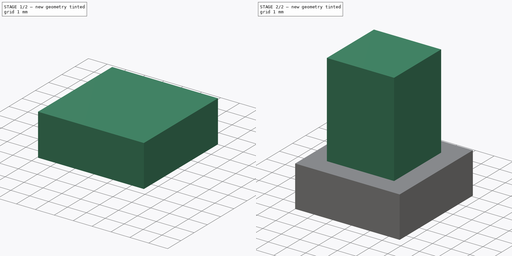
[diagram: build sequence overview — one tinted view per stage of 2, left to right]
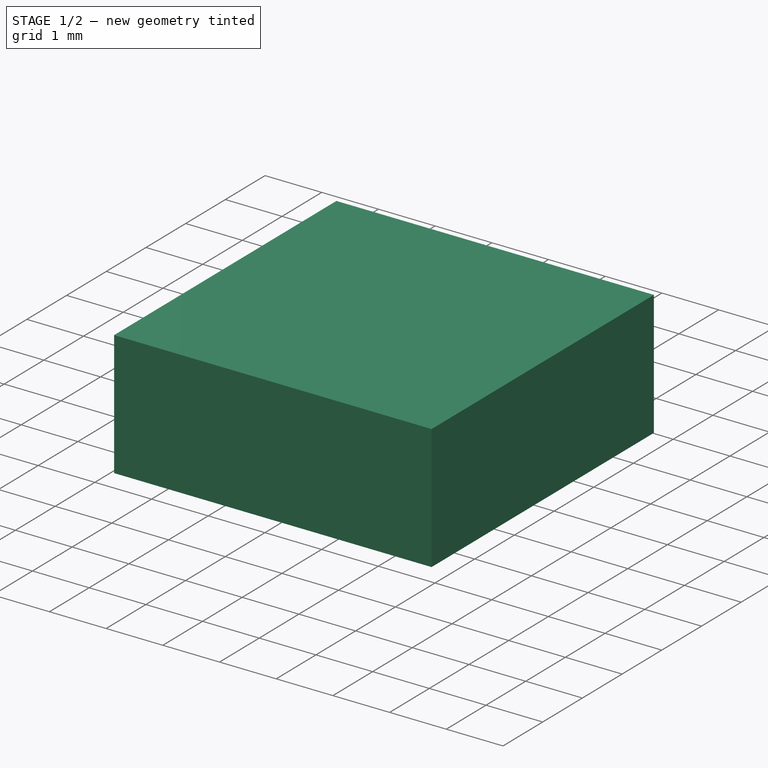
[diagram: stage 1 of 2 — iso view after this stage's code; geometry added in this stage tinted green]
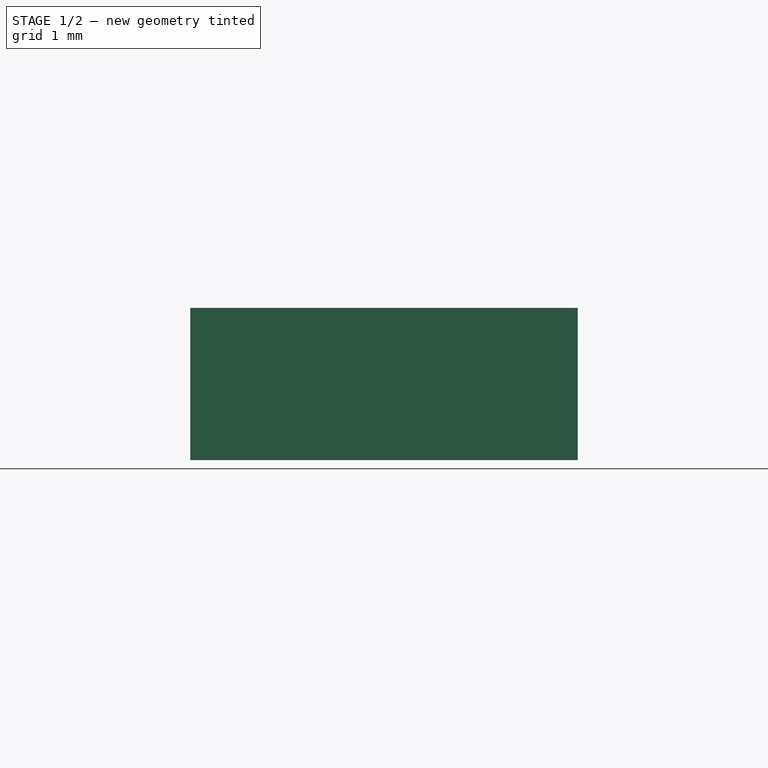
[diagram: stage 1 of 2 — front view after this stage's code; geometry added in this stage tinted green]
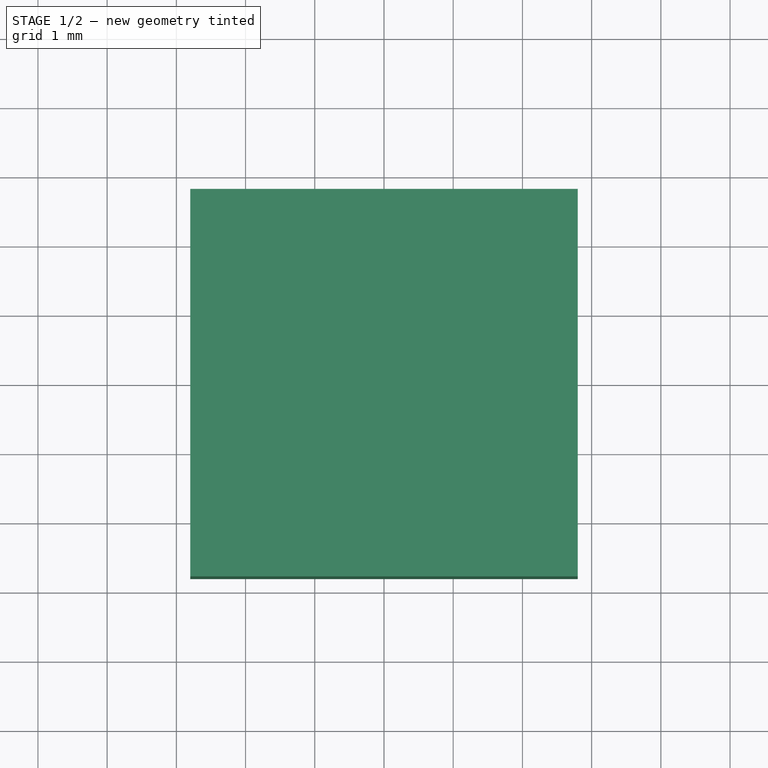
[diagram: stage 1 of 2 — top view after this stage's code; geometry added in this stage tinted green]
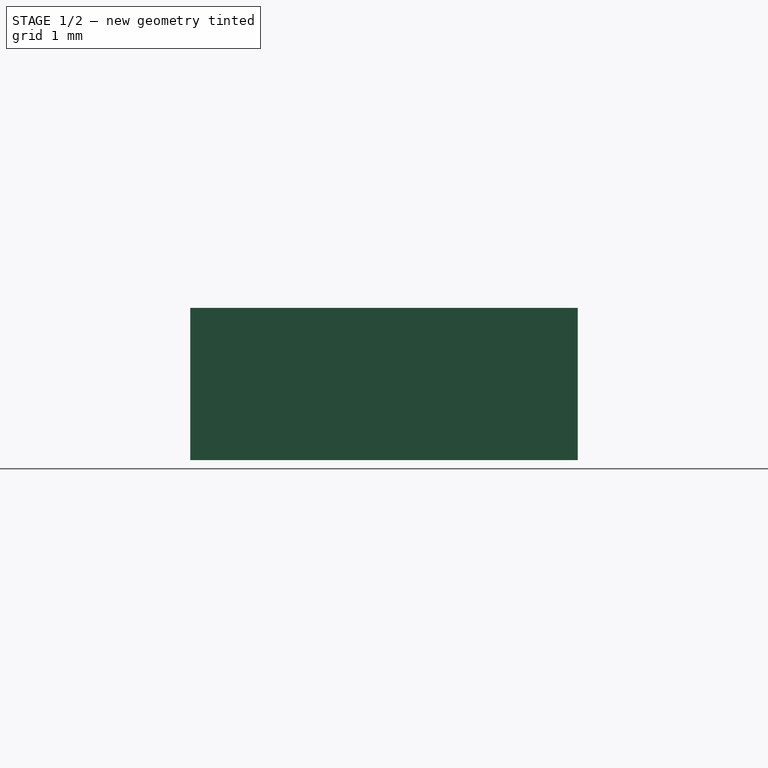
[diagram: stage 1 of 2 — right view after this stage's code; geometry added in this stage tinted green]
FCSTD DOCUMENT  (FreeCAD 0.16R6706 (Git))
Label: LegSpacer
License: All rights reserved
LicenseURL: http://en.wikipedia.org/wiki/All_rights_reserved
objects: Sketcher::SketchObject×2, PartDesign::Pad×2
note: 6 computed .brp shape members not serialized (recipe doc carries the construction recipe); baked Part::Feature solids carry a one-line shape summary decoded from their .brp

FEATURE [Sketcher::SketchObject] Sketch
  sketch-geometry (4):
    g0: LineSegment StartX=-2.8 StartY=2.8 StartZ=0 EndX=2.8 EndY=2.8 EndZ=0
    g1: LineSegment StartX=2.8 StartY=2.8 StartZ=0 EndX=2.8 EndY=-2.8 EndZ=0
    g2: LineSegment StartX=2.8 StartY=-2.8 StartZ=0 EndX=-2.8 EndY=-2.8 EndZ=0
    g3: LineSegment StartX=-2.8 StartY=-2.8 StartZ=0 EndX=-2.8 EndY=2.8 EndZ=0
  constraints (11):
    c: Coincident(g0,g1)
    c: Coincident(g1,g2)
    c: Coincident(g2,g3)
    c: Coincident(g3,g0)
    c: Horizontal(g0)
    c: Horizontal(g2)
    c: Vertical(g1)
    c: Vertical(g3)
    c: Symmetric(g2,g0,g-1)
    c: Equal(g1,g0)
    c: DistanceY(g1,g1) = 5.6
FEATURE [PartDesign::Pad] Pad
  Length = 2.2
  Length2 = 100
  Sketch = -> Sketch
  Type = 0
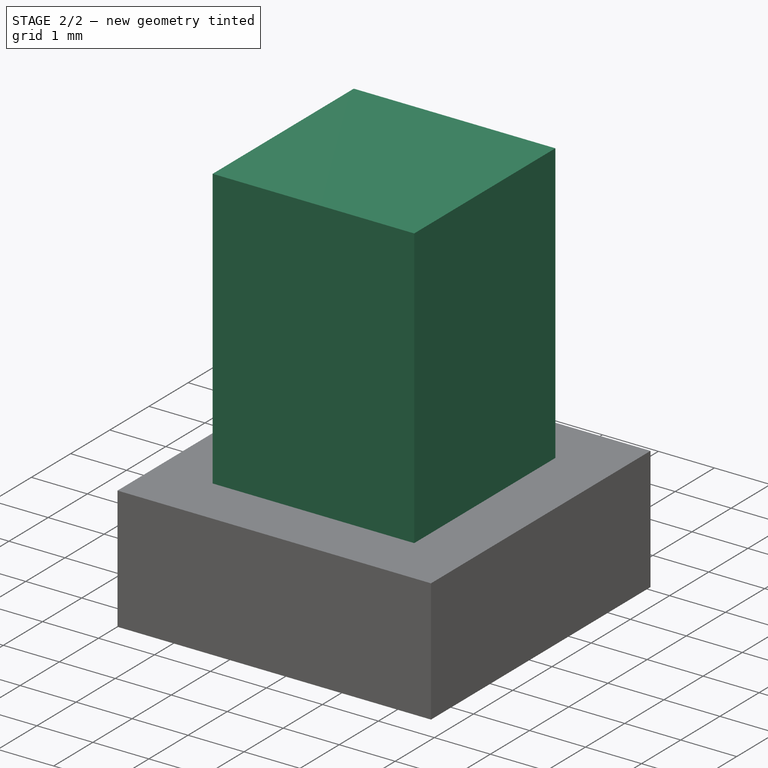
[diagram: stage 2 of 2 — iso view after this stage's code; geometry added in this stage tinted green]
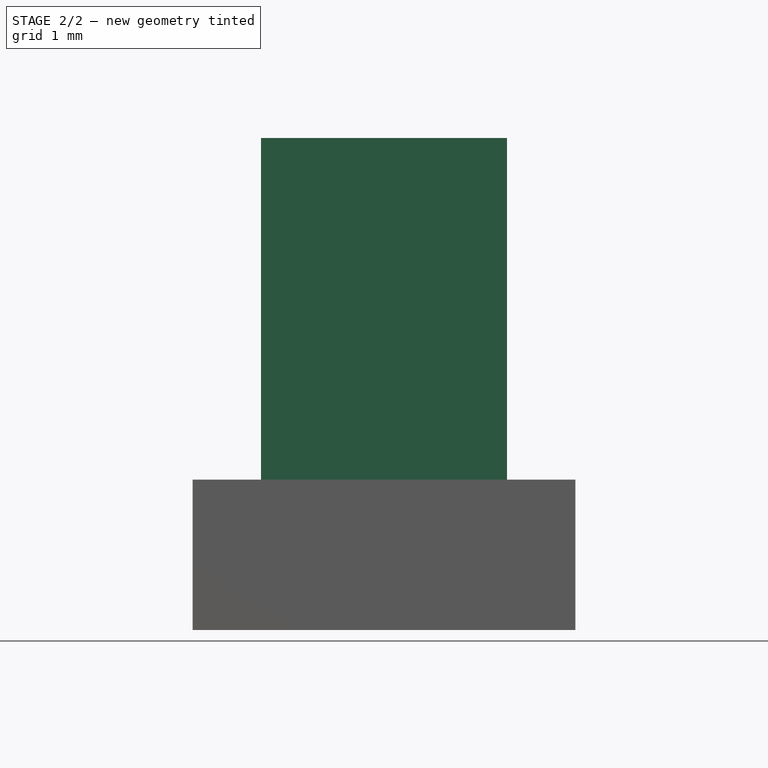
[diagram: stage 2 of 2 — front view after this stage's code; geometry added in this stage tinted green]
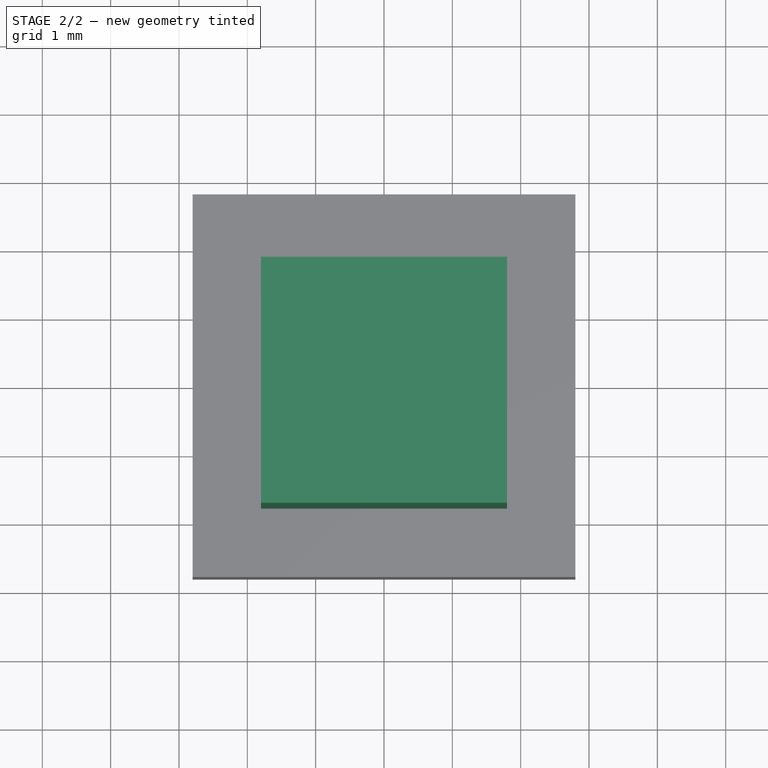
[diagram: stage 2 of 2 — top view after this stage's code; geometry added in this stage tinted green]
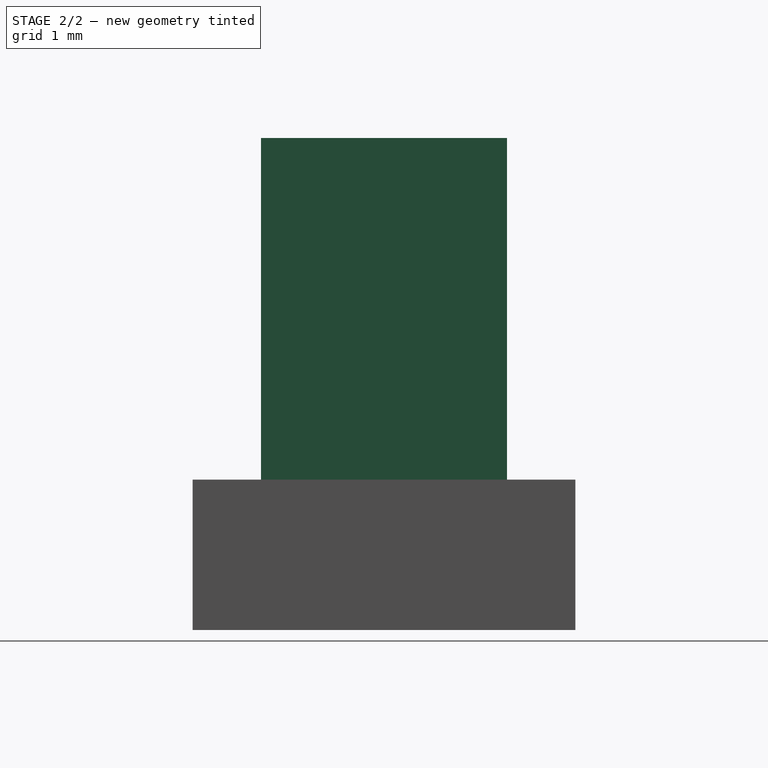
[diagram: stage 2 of 2 — right view after this stage's code; geometry added in this stage tinted green]
FEATURE [Sketcher::SketchObject] Sketch001
  Placement = pos=(0,0,2.2) rot=(0,0,1;0rad)
  Support = -> Pad [Face6]
  sketch-geometry (4):
    g0: LineSegment StartX=-1.8 StartY=1.8 StartZ=0 EndX=1.8 EndY=1.8 EndZ=0
    g1: LineSegment StartX=1.8 StartY=1.8 StartZ=0 EndX=1.8 EndY=-1.8 EndZ=0
    g2: LineSegment StartX=1.8 StartY=-1.8 StartZ=0 EndX=-1.8 EndY=-1.8 EndZ=0
    g3: LineSegment StartX=-1.8 StartY=-1.8 StartZ=0 EndX=-1.8 EndY=1.8 EndZ=0
  constraints (11):
    c: Coincident(g0,g1)
    c: Coincident(g1,g2)
    c: Coincident(g2,g3)
    c: Coincident(g3,g0)
    c: Horizontal(g0)
    c: Horizontal(g2)
    c: Vertical(g1)
    c: Vertical(g3)
    c: Symmetric(g2,g0,g-1)
    c: Equal(g1,g0)
    c: DistanceY(g1,g1) = 3.6
FEATURE [PartDesign::Pad] Pad001
  Length = 5
  Length2 = 100
  Sketch = -> Sketch001
  Type = 0
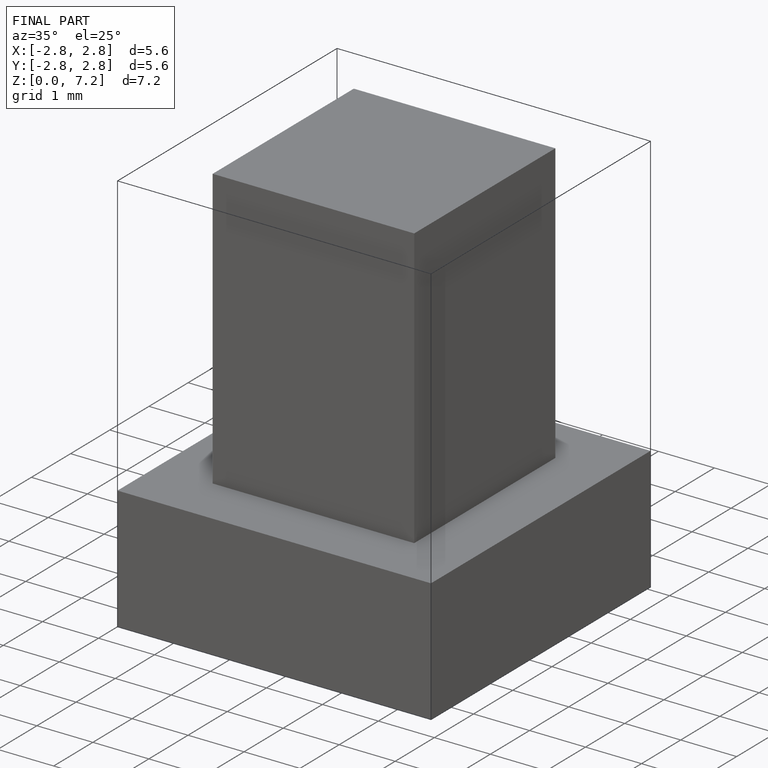
[diagram: finished part — iso view with bounding-box wireframe]
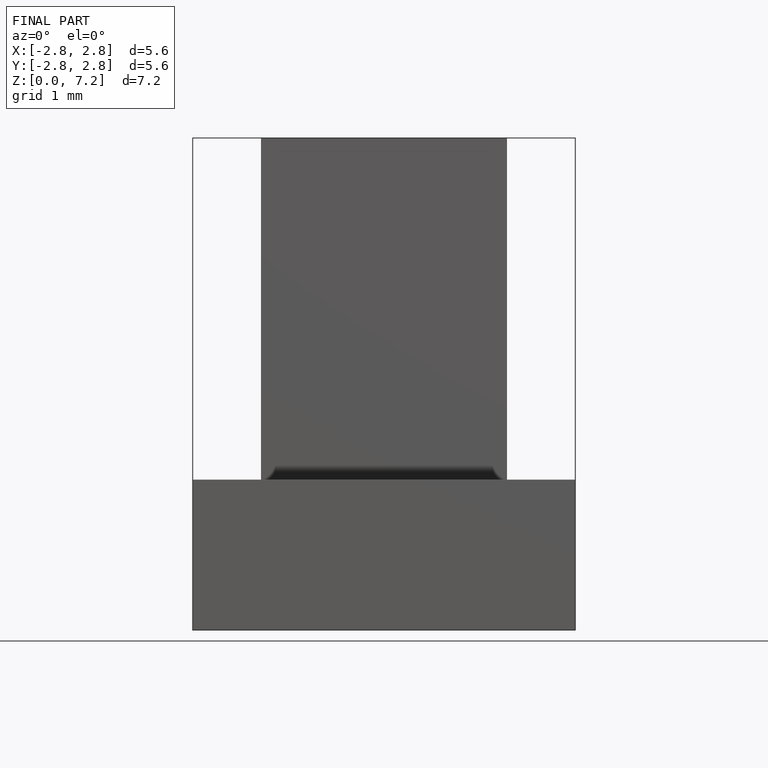
[diagram: finished part — front view with bounding-box wireframe]
